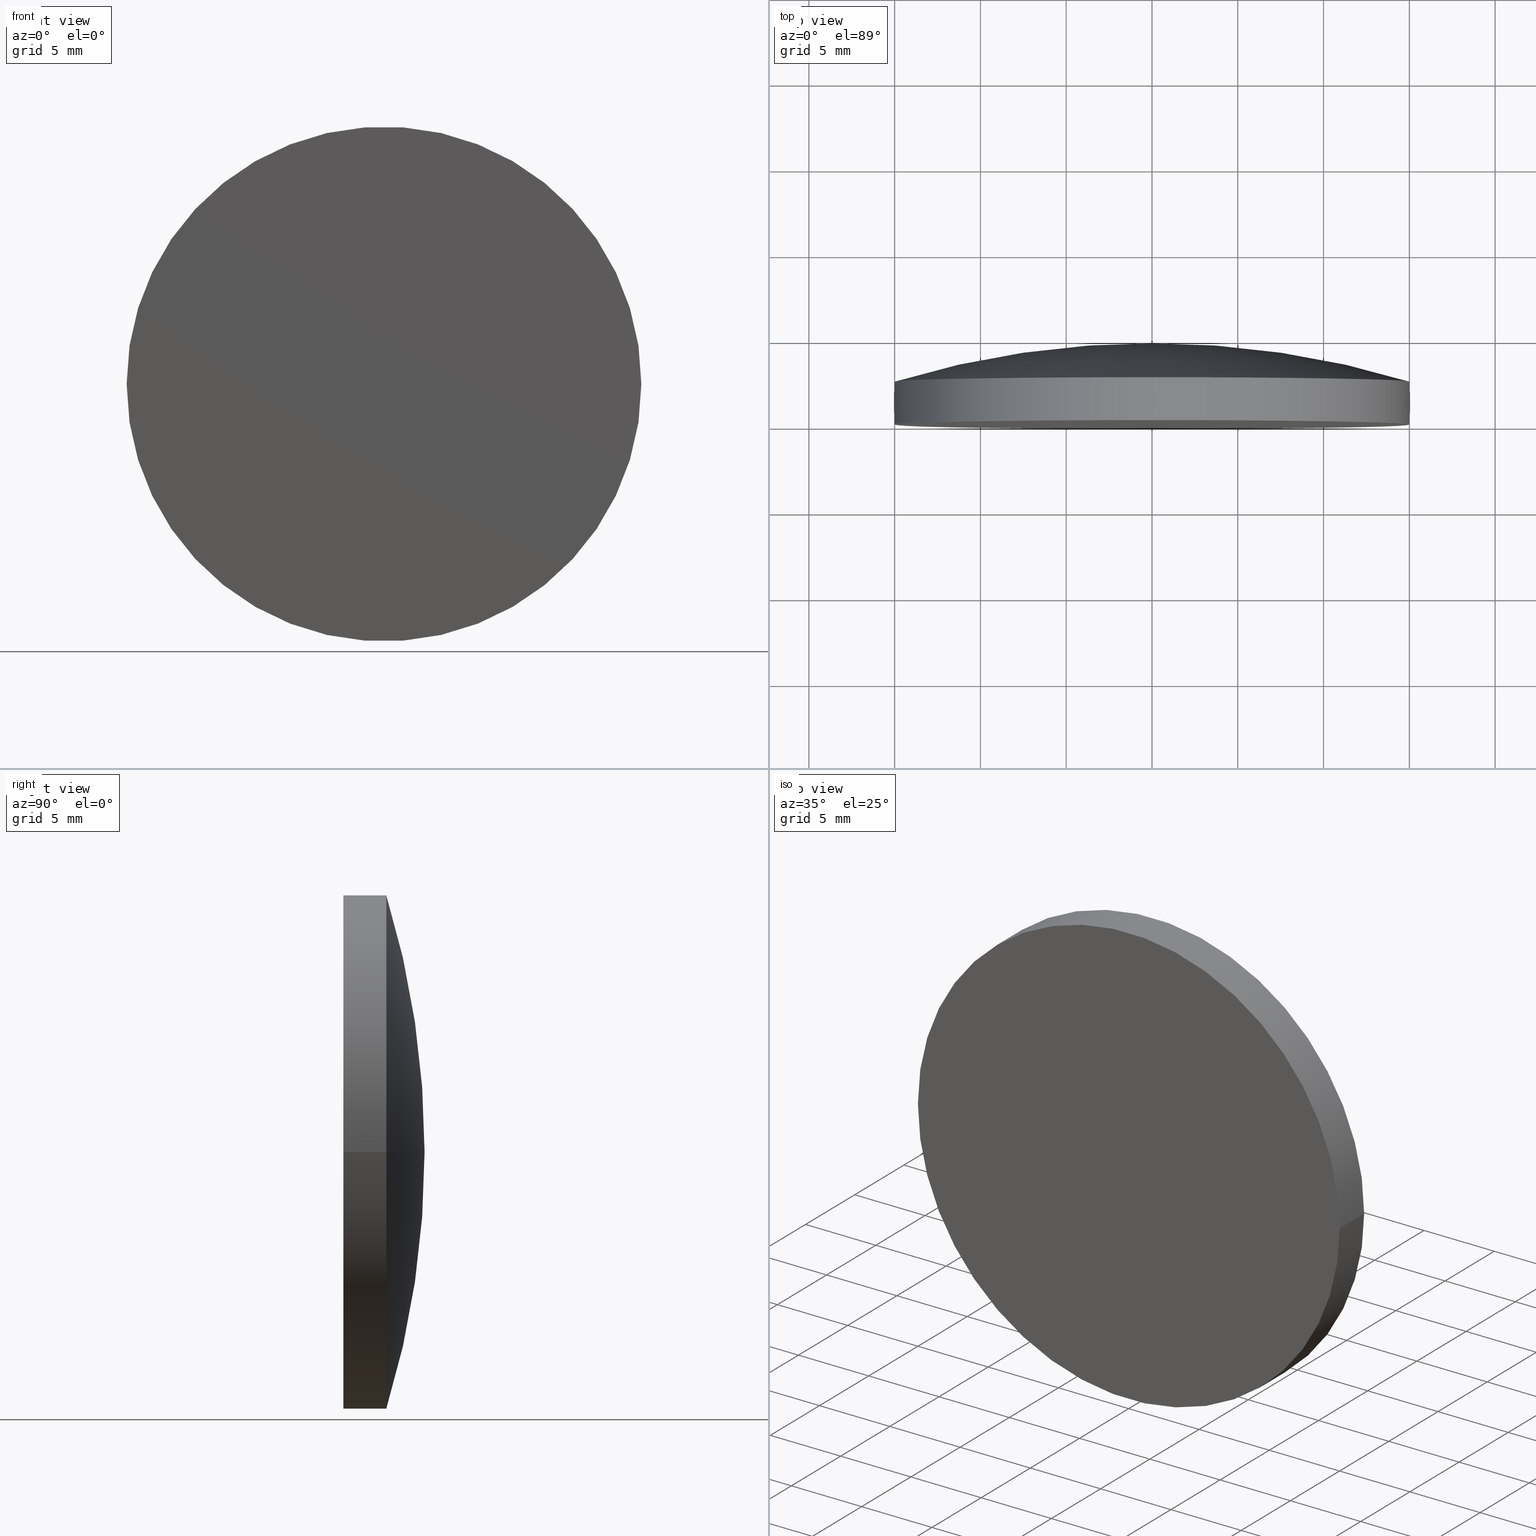
[diagram: canonical four-view strip — front | top / right | iso, engineering-drawing reading convention]
A machine part, canonical four-view strip (front | top / right | iso — engineering-drawing reading convention). The complete STEP part file that produces these views, byte-faithful:
ISO-10303-21;
HEADER;
FILE_DESCRIPTION (( 'STEP AP203' ),
    '1' );
FILE_NAME ('100575.STEP',
    '2024-05-09T08:46:55',
    ( '' ),
    ( '' ),
    'SwSTEP 2.0',
    'SolidWorks 2020',
    '' );
FILE_SCHEMA (( 'CONFIG_CONTROL_DESIGN' ));
ENDSEC;

DATA;
#1 = CC_DESIGN_PERSON_AND_ORGANIZATION_ASSIGNMENT ( #169, #3, ( #189 ) ) ;
#2 = PRODUCT_DEFINITION_SHAPE ( 'NONE', 'NONE',  #70 ) ;
#3 = PERSON_AND_ORGANIZATION_ROLE ( 'classification_officer' ) ;
#4 = CARTESIAN_POINT ( 'NONE',  ( -0.01138314681478247783, -46.90999874539085113, -1.394033431094687307E-18 ) ) ;
#5 = DIRECTION ( 'NONE',  ( 1.527572117329677268E-17, 1.000000000000000000, -0.000000000000000000 ) ) ;
#6 = CIRCLE ( 'NONE', #128, 51.64000000000000057 ) ;
#7 = ORIENTED_EDGE ( 'NONE', *, *, #180, .F. ) ;
#8 = CARTESIAN_POINT ( 'NONE',  ( 15.00000000000000000, 4.730000000000000426, 1.836970198721029589E-15 ) ) ;
#9 = DIRECTION ( 'NONE',  ( -1.000000000000000000, 2.891205793294678696E-17, 0.000000000000000000 ) ) ;
#10 = DIRECTION ( 'NONE',  ( 1.000000000000000000, -1.527572117329677268E-17, 0.000000000000000000 ) ) ;
#11 = CC_DESIGN_APPROVAL ( #32, ( #70 ) ) ;
#12 = CARTESIAN_POINT ( 'NONE',  ( -15.00000000000000000, 4.730000000000000426, 0.000000000000000000 ) ) ;
#13 = EDGE_CURVE ( 'NONE', #21, #134, #86, .T. ) ;
#14 = AXIS2_PLACEMENT_3D ( 'NONE', #117, #42, #10 ) ;
#15 = APPROVAL_ROLE ( '' ) ;
#16 = ADVANCED_FACE ( 'NONE', ( #57 ), #80, .T. ) ;
#17 = COORDINATED_UNIVERSAL_TIME_OFFSET ( 8, 0, .AHEAD. ) ;
#18 = APPROVAL_ROLE ( '' ) ;
#19 = AXIS2_PLACEMENT_3D ( 'NONE', #46, #165, #104 ) ;
#20 = VERTEX_POINT ( 'NONE', #193 ) ;
#21 = VERTEX_POINT ( 'NONE', #84 ) ;
#22 = ORIENTED_EDGE ( 'NONE', *, *, #187, .F. ) ;
#23 = APPROVAL ( #144, 'δָ��' ) ;
#24 = EDGE_LOOP ( 'NONE', ( #191, #157, #151, #22 ) ) ;
#25 = CYLINDRICAL_SURFACE ( 'NONE', #89, 15.00000000000000000 ) ;
#26 = EDGE_CURVE ( 'NONE', #134, #87, #37, .T. ) ;
#27 = DIRECTION ( 'NONE',  ( -1.000000000000000000, 0.000000000000000000, 0.000000000000000000 ) ) ;
#28 = CC_DESIGN_APPROVAL ( #23, ( #201 ) ) ;
#29 = CARTESIAN_POINT ( 'NONE',  ( -15.00000000000000178, 2.500000000000000444, 0.000000000000000000 ) ) ;
#30 = PRODUCT_RELATED_PRODUCT_CATEGORY ( 'detail', '', ( #171 ) ) ;
#31 = DATE_AND_TIME ( #65, #116 ) ;
#32 = APPROVAL ( #183, 'δָ��' ) ;
#33 = VECTOR ( 'NONE', #163, 1000.000000000000000 ) ;
#34 = APPROVAL_STATUS ( 'not_yet_approved' ) ;
#35 = CIRCLE ( 'NONE', #152, 15.00000000000000000 ) ;
#36 = ADVANCED_BREP_SHAPE_REPRESENTATION ( '100575', ( #99, #19 ), #100 ) ;
#37 = LINE ( 'NONE', #8, #149 ) ;
#38 = ORIENTED_EDGE ( 'NONE', *, *, #26, .T. ) ;
#39 = EDGE_LOOP ( 'NONE', ( #147, #102, #159 ) ) ;
#40 = PERSON_AND_ORGANIZATION_ROLE ( 'design_owner' ) ;
#41 = AXIS2_PLACEMENT_3D ( 'NONE', #148, #135, #90 ) ;
#42 = DIRECTION ( 'NONE',  ( -1.527572117329677268E-17, -1.000000000000000000, 0.000000000000000000 ) ) ;
#43 = APPLICATION_PROTOCOL_DEFINITION ( 'international standard', 'config_control_design', 1994, #66 ) ;
#44 = DESIGN_CONTEXT ( 'detailed design', #66, 'design' ) ;
#45 = ORIENTED_EDGE ( 'NONE', *, *, #126, .F. ) ;
#46 = CARTESIAN_POINT ( 'NONE',  ( 0.000000000000000000, 0.000000000000000000, 0.000000000000000000 ) ) ;
#47 = CC_DESIGN_DATE_AND_TIME_ASSIGNMENT ( #112, #166, ( #70 ) ) ;
#48 = AXIS2_PLACEMENT_3D ( 'NONE', #61, #88, #127 ) ;
#49 = PERSON ( 'δָ��', 'δָ��', 'δָ��', ('δָ��'), ('δָ��'), ('δָ��') ) ;
#50 = ADVANCED_FACE ( 'NONE', ( #176 ), #196, .T. ) ;
#51 = PERSON_AND_ORGANIZATION_ROLE ( 'creator' ) ;
#52 = CC_DESIGN_SECURITY_CLASSIFICATION ( #189, ( #201 ) ) ;
#53 = COORDINATED_UNIVERSAL_TIME_OFFSET ( 8, 0, .AHEAD. ) ;
#54 = CARTESIAN_POINT ( 'NONE',  ( 3.818930293324189780E-17, 2.499999999999997780, 0.000000000000000000 ) ) ;
#55 = LOCAL_TIME ( 16, 46, 55.00000000000000000, #186 ) ;
#56 = ORIENTED_EDGE ( 'NONE', *, *, #13, .F. ) ;
#57 = FACE_OUTER_BOUND ( 'NONE', #39, .T. ) ;
#58 = CYLINDRICAL_SURFACE ( 'NONE', #138, 15.00000000000000000 ) ;
#59 = DIRECTION ( 'NONE',  ( -1.000000000000000000, 0.000000000000000000, 0.000000000000000000 ) ) ;
#60 = UNCERTAINTY_MEASURE_WITH_UNIT (LENGTH_MEASURE( 1.000000000000000082E-05 ), #153, 'distance_accuracy_value', 'NONE');
#61 = CARTESIAN_POINT ( 'NONE',  ( -3.611118645726067224E-32, -1.734723475976807094E-15, 0.000000000000000000 ) ) ;
#62 = CALENDAR_DATE ( 2024, 9, 5 ) ;
#63 = ADVANCED_FACE ( 'NONE', ( #76 ), #185, .T. ) ;
#64 = PERSON_AND_ORGANIZATION_ROLE ( 'design_supplier' ) ;
#65 = CALENDAR_DATE ( 2024, 9, 5 ) ;
#66 = APPLICATION_CONTEXT ( 'configuration controlled 3d designs of mechanical parts and assemblies' ) ;
#67 = CIRCLE ( 'NONE', #177, 15.00000000000000000 ) ;
#68 = COORDINATED_UNIVERSAL_TIME_OFFSET ( 8, 0, .AHEAD. ) ;
#69 = DIRECTION ( 'NONE',  ( -1.224646799147353207E-16, 1.870736303954534262E-33, 1.000000000000000000 ) ) ;
#70 = PRODUCT_DEFINITION ( 'δ֪', '', #201, #44 ) ;
#71 = DIRECTION ( 'NONE',  ( -1.000000000000000000, 2.891205793294678696E-17, 0.000000000000000000 ) ) ;
#72 = EDGE_LOOP ( 'NONE', ( #162, #122, #188 ) ) ;
#73 = FACE_OUTER_BOUND ( 'NONE', #118, .T. ) ;
#74 = DIRECTION ( 'NONE',  ( -1.000000000000000000, 1.527572117329677268E-17, 0.000000000000000000 ) ) ;
#75 = APPLICATION_PROTOCOL_DEFINITION ( 'international standard', 'config_control_design', 1994, #121 ) ;
#76 = FACE_OUTER_BOUND ( 'NONE', #72, .T. ) ;
#77 = LOCAL_TIME ( 16, 46, 55.00000000000000000, #182 ) ;
#78 = DIRECTION ( 'NONE',  ( 1.527572117329677268E-17, 1.000000000000000000, -0.000000000000000000 ) ) ;
#79 = PERSON_AND_ORGANIZATION ( #49, #172 ) ;
#80 = TOROIDAL_SURFACE ( 'NONE', #199, -0.01138314681478176139, 51.64000000000000057 ) ;
#81 = PERSON_AND_ORGANIZATION ( #49, #172 ) ;
#82 = LOCAL_TIME ( 16, 46, 55.00000000000000000, #68 ) ;
#83 = DIRECTION ( 'NONE',  ( -1.000000000000000000, 1.527572117329677268E-17, 0.000000000000000000 ) ) ;
#84 = CARTESIAN_POINT ( 'NONE',  ( -15.00000000000000000, -1.505587658377355424E-15, 0.000000000000000000 ) ) ;
#85 = ORIENTED_EDGE ( 'NONE', *, *, #139, .F. ) ;
#86 = CIRCLE ( 'NONE', #41, 15.00000000000000000 ) ;
#87 = VERTEX_POINT ( 'NONE', #125 ) ;
#88 = DIRECTION ( 'NONE',  ( 1.527572117329677268E-17, 1.000000000000000000, -0.000000000000000000 ) ) ;
#89 = AXIS2_PLACEMENT_3D ( 'NONE', #93, #124, #27 ) ;
#90 = DIRECTION ( 'NONE',  ( -1.000000000000000000, 1.527572117329677576E-17, 0.000000000000000000 ) ) ;
#91 = LINE ( 'NONE', #12, #33 ) ;
#92 = DIRECTION ( 'NONE',  ( 1.527572117329677268E-17, 1.000000000000000000, -0.000000000000000000 ) ) ;
#93 = CARTESIAN_POINT ( 'NONE',  ( 7.225416114969374086E-17, 4.730000000000000426, 0.000000000000000000 ) ) ;
#94 = EDGE_CURVE ( 'NONE', #87, #20, #6, .T. ) ;
#95 = DATE_AND_TIME ( #200, #77 ) ;
#96 = APPROVAL_DATE_TIME ( #31, #23 ) ;
#97 = APPROVAL_DATE_TIME ( #130, #170 ) ;
#98 = DATE_AND_TIME ( #155, #141 ) ;
#99 = MANIFOLD_SOLID_BREP ( '��ת2', #160 ) ;
#100 =( GEOMETRIC_REPRESENTATION_CONTEXT ( 3 ) GLOBAL_UNCERTAINTY_ASSIGNED_CONTEXT ( ( #60 ) ) GLOBAL_UNIT_ASSIGNED_CONTEXT ( ( #153, #179, #120 ) ) REPRESENTATION_CONTEXT ( 'NONE', 'WORKASPACE' ) );
#101 = CARTESIAN_POINT ( 'NONE',  ( -7.165898733771380869E-16, -46.90999874539085113, 0.000000000000000000 ) ) ;
#102 = ORIENTED_EDGE ( 'NONE', *, *, #187, .T. ) ;
#103 = CIRCLE ( 'NONE', #114, 51.64000000000000057 ) ;
#104 = DIRECTION ( 'NONE',  ( 1.000000000000000000, 0.000000000000000000, 0.000000000000000000 ) ) ;
#105 = CC_DESIGN_PERSON_AND_ORGANIZATION_ASSIGNMENT ( #131, #51, ( #201 ) ) ;
#106 = PERSON_AND_ORGANIZATION ( #49, #172 ) ;
#107 = CARTESIAN_POINT ( 'NONE',  ( -7.165898733771380869E-16, -46.90999874539085113, 0.000000000000000000 ) ) ;
#108 = CC_DESIGN_PERSON_AND_ORGANIZATION_ASSIGNMENT ( #79, #40, ( #171 ) ) ;
#109 = APPROVAL_PERSON_ORGANIZATION ( #168, #170, #132 ) ;
#110 = CARTESIAN_POINT ( 'NONE',  ( 3.818930293324189780E-17, 2.499999999999997780, 0.000000000000000000 ) ) ;
#111 = APPROVAL_PERSON_ORGANIZATION ( #106, #32, #15 ) ;
#112 = DATE_AND_TIME ( #115, #82 ) ;
#113 = PERSON_AND_ORGANIZATION ( #49, #172 ) ;
#114 = AXIS2_PLACEMENT_3D ( 'NONE', #197, #140, #161 ) ;
#115 = CALENDAR_DATE ( 2024, 9, 5 ) ;
#116 = LOCAL_TIME ( 16, 46, 55.00000000000000000, #17 ) ;
#117 = CARTESIAN_POINT ( 'NONE',  ( -1.578062970989131200E-32, -1.033053008160240630E-15, 0.000000000000000000 ) ) ;
#118 = EDGE_LOOP ( 'NONE', ( #146, #38, #45, #85 ) ) ;
#119 = CC_DESIGN_PERSON_AND_ORGANIZATION_ASSIGNMENT ( #142, #64, ( #201 ) ) ;
#120 =( NAMED_UNIT ( * ) SI_UNIT ( $, .STERADIAN. ) SOLID_ANGLE_UNIT ( ) );
#121 = APPLICATION_CONTEXT ( 'configuration controlled 3d designs of mechanical parts and assemblies' ) ;
#122 = ORIENTED_EDGE ( 'NONE', *, *, #94, .T. ) ;
#123 = AXIS2_PLACEMENT_3D ( 'NONE', #101, #178, #83 ) ;
#124 = DIRECTION ( 'NONE',  ( 1.527572117329677268E-17, 1.000000000000000000, -0.000000000000000000 ) ) ;
#125 = CARTESIAN_POINT ( 'NONE',  ( 15.00000000000000000, 2.499999999999999556, 1.836970198721029589E-15 ) ) ;
#126 = EDGE_CURVE ( 'NONE', #175, #87, #67, .T. ) ;
#127 = DIRECTION ( 'NONE',  ( -1.000000000000000000, 1.527572117329677576E-17, 0.000000000000000000 ) ) ;
#128 = AXIS2_PLACEMENT_3D ( 'NONE', #4, #69, #133 ) ;
#129 = APPROVAL_PERSON_ORGANIZATION ( #81, #23, #18 ) ;
#130 = DATE_AND_TIME ( #62, #55 ) ;
#131 = PERSON_AND_ORGANIZATION ( #49, #172 ) ;
#132 = APPROVAL_ROLE ( '' ) ;
#133 = DIRECTION ( 'NONE',  ( 1.000000000000000000, 0.000000000000000000, 1.224646799147353207E-16 ) ) ;
#134 = VERTEX_POINT ( 'NONE', #137 ) ;
#135 = DIRECTION ( 'NONE',  ( 1.527572117329677268E-17, 1.000000000000000000, -0.000000000000000000 ) ) ;
#136 = CC_DESIGN_DATE_AND_TIME_ASSIGNMENT ( #98, #156, ( #189 ) ) ;
#137 = CARTESIAN_POINT ( 'NONE',  ( 15.00000000000000000, -1.963859293576258765E-15, 1.836970198721029589E-15 ) ) ;
#138 = AXIS2_PLACEMENT_3D ( 'NONE', #192, #78, #59 ) ;
#139 = EDGE_CURVE ( 'NONE', #21, #175, #91, .T. ) ;
#140 = DIRECTION ( 'NONE',  ( -0.000000000000000000, 0.000000000000000000, -1.000000000000000000 ) ) ;
#141 = LOCAL_TIME ( 16, 46, 55.00000000000000000, #53 ) ;
#142 = PERSON_AND_ORGANIZATION ( #49, #172 ) ;
#143 = EDGE_CURVE ( 'NONE', #175, #20, #103, .T. ) ;
#144 = APPROVAL_STATUS ( 'not_yet_approved' ) ;
#145 = APPROVAL_DATE_TIME ( #95, #32 ) ;
#146 = ORIENTED_EDGE ( 'NONE', *, *, #13, .T. ) ;
#147 = ORIENTED_EDGE ( 'NONE', *, *, #94, .F. ) ;
#148 = CARTESIAN_POINT ( 'NONE',  ( -3.611118645726067224E-32, -1.734723475976807094E-15, 0.000000000000000000 ) ) ;
#149 = VECTOR ( 'NONE', #5, 1000.000000000000000 ) ;
#150 = DIRECTION ( 'NONE',  ( 1.527572117329677268E-17, 1.000000000000000000, -0.000000000000000000 ) ) ;
#151 = ORIENTED_EDGE ( 'NONE', *, *, #139, .T. ) ;
#152 = AXIS2_PLACEMENT_3D ( 'NONE', #110, #92, #9 ) ;
#153 =( LENGTH_UNIT ( ) NAMED_UNIT ( * ) SI_UNIT ( .MILLI., .METRE. ) );
#154 = ADVANCED_FACE ( 'NONE', ( #198 ), #25, .T. ) ;
#155 = CALENDAR_DATE ( 2024, 9, 5 ) ;
#156 = DATE_TIME_ROLE ( 'classification_date' ) ;
#157 = ORIENTED_EDGE ( 'NONE', *, *, #180, .T. ) ;
#158 = CC_DESIGN_PERSON_AND_ORGANIZATION_ASSIGNMENT ( #113, #184, ( #70 ) ) ;
#159 = ORIENTED_EDGE ( 'NONE', *, *, #143, .T. ) ;
#160 = CLOSED_SHELL ( 'NONE', ( #174, #63, #16, #50, #154 ) ) ;
#161 = DIRECTION ( 'NONE',  ( -1.000000000000000000, 0.000000000000000000, 0.000000000000000000 ) ) ;
#162 = ORIENTED_EDGE ( 'NONE', *, *, #126, .T. ) ;
#163 = DIRECTION ( 'NONE',  ( 1.527572117329677268E-17, 1.000000000000000000, -0.000000000000000000 ) ) ;
#164 = CC_DESIGN_APPROVAL ( #170, ( #189 ) ) ;
#165 = DIRECTION ( 'NONE',  ( 0.000000000000000000, 0.000000000000000000, 1.000000000000000000 ) ) ;
#166 = DATE_TIME_ROLE ( 'creation_date' ) ;
#167 = SECURITY_CLASSIFICATION_LEVEL ( 'unclassified' ) ;
#168 = PERSON_AND_ORGANIZATION ( #49, #172 ) ;
#169 = PERSON_AND_ORGANIZATION ( #49, #172 ) ;
#170 = APPROVAL ( #34, 'δָ��' ) ;
#171 = PRODUCT ( '100575', '100575', '', ( #194 ) ) ;
#172 = ORGANIZATION ( 'δָ��', 'δָ��', '' ) ;
#173 = DIRECTION ( 'NONE',  ( 1.527572117329677268E-17, 1.000000000000000000, -0.000000000000000000 ) ) ;
#174 = ADVANCED_FACE ( 'NONE', ( #73 ), #58, .T. ) ;
#175 = VERTEX_POINT ( 'NONE', #29 ) ;
#176 = FACE_OUTER_BOUND ( 'NONE', #190, .T. ) ;
#177 = AXIS2_PLACEMENT_3D ( 'NONE', #54, #173, #71 ) ;
#178 = DIRECTION ( 'NONE',  ( 1.527572117329677268E-17, 1.000000000000000000, -0.000000000000000000 ) ) ;
#179 =( NAMED_UNIT ( * ) PLANE_ANGLE_UNIT ( ) SI_UNIT ( $, .RADIAN. ) );
#180 = EDGE_CURVE ( 'NONE', #134, #21, #195, .T. ) ;
#181 = SHAPE_DEFINITION_REPRESENTATION ( #2, #36 ) ;
#182 = COORDINATED_UNIVERSAL_TIME_OFFSET ( 8, 0, .AHEAD. ) ;
#183 = APPROVAL_STATUS ( 'not_yet_approved' ) ;
#184 = PERSON_AND_ORGANIZATION_ROLE ( 'creator' ) ;
#185 = TOROIDAL_SURFACE ( 'NONE', #123, -0.01138314681478176139, 51.64000000000000057 ) ;
#186 = COORDINATED_UNIVERSAL_TIME_OFFSET ( 8, 0, .AHEAD. ) ;
#187 = EDGE_CURVE ( 'NONE', #87, #175, #35, .T. ) ;
#188 = ORIENTED_EDGE ( 'NONE', *, *, #143, .F. ) ;
#189 = SECURITY_CLASSIFICATION ( '', '', #167 ) ;
#190 = EDGE_LOOP ( 'NONE', ( #56, #7 ) ) ;
#191 = ORIENTED_EDGE ( 'NONE', *, *, #26, .F. ) ;
#192 = CARTESIAN_POINT ( 'NONE',  ( 7.225416114969374086E-17, 4.730000000000000426, 0.000000000000000000 ) ) ;
#193 = CARTESIAN_POINT ( 'NONE',  ( 7.225416114969374086E-17, 4.730000000000000426, 0.000000000000000000 ) ) ;
#194 = MECHANICAL_CONTEXT ( 'NONE', #121, 'mechanical' ) ;
#195 = CIRCLE ( 'NONE', #48, 15.00000000000000000 ) ;
#196 = PLANE ( 'NONE',  #14 ) ;
#197 = CARTESIAN_POINT ( 'NONE',  ( 0.01138314681478104495, -46.90999874539085113, 0.000000000000000000 ) ) ;
#198 = FACE_OUTER_BOUND ( 'NONE', #24, .T. ) ;
#199 = AXIS2_PLACEMENT_3D ( 'NONE', #107, #150, #74 ) ;
#200 = CALENDAR_DATE ( 2024, 9, 5 ) ;
#201 = PRODUCT_DEFINITION_FORMATION_WITH_SPECIFIED_SOURCE ( '�κ�', '', #171, .NOT_KNOWN. ) ;
ENDSEC;
END-ISO-10303-21;
